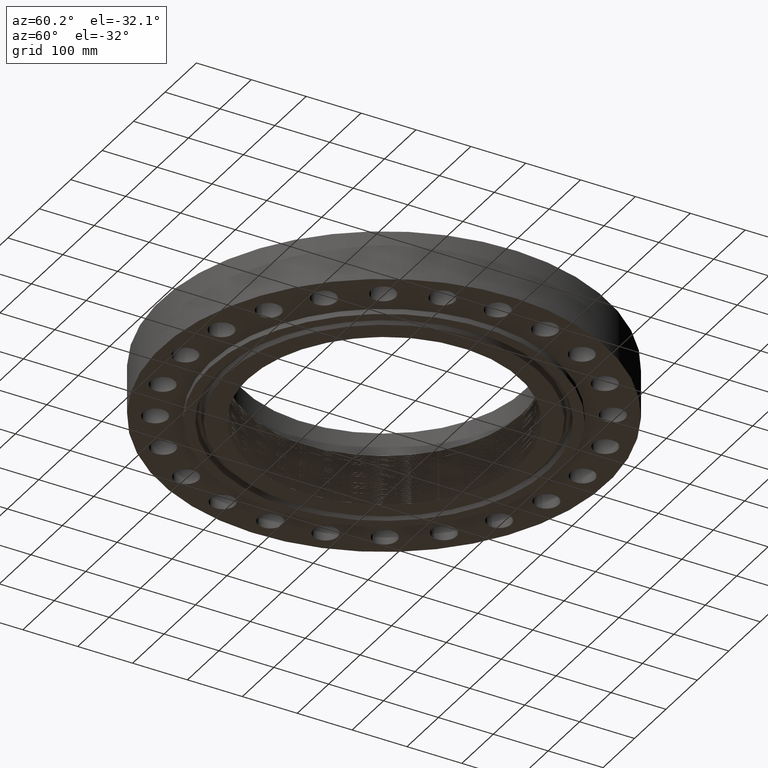
[diagram: clean part render]
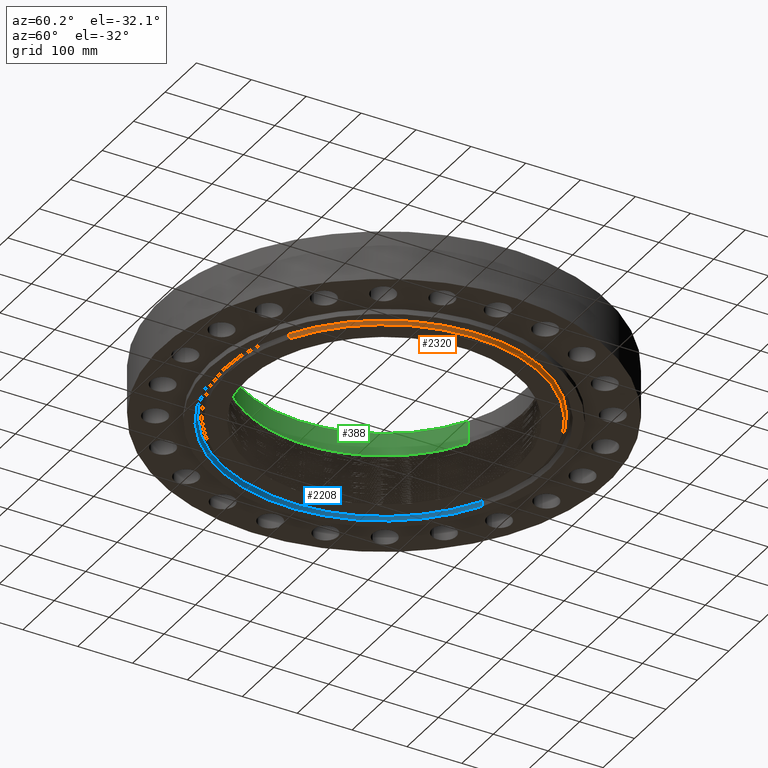
[diagram: same view with three faces highlighted in distinct colors, each labeled with its STEP entity id]
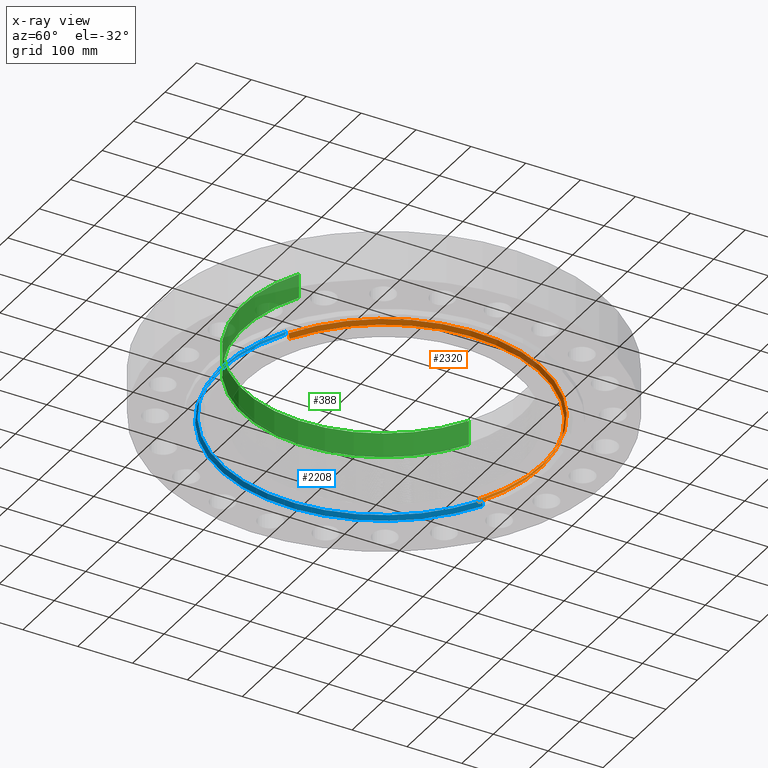
[diagram: x-ray of the same camera — body ghosted, the three highlighted faces saturated]
A machine part, auxiliary view with three faces highlighted in distinct colors.
The next image is the same camera in x-ray (body ghosted, the three faces saturated) — at least one of them is partly hidden behind the body in this view.
Their STEP definitions:

[orange] entity #2320 — the highlighted conical surface has half-angle 23 deg.
#199=AXIS2_PLACEMENT_3D('Circle Axis2P3D',#197,#198,$) ;
#2270=AXIS2_PLACEMENT_3D('Circle Axis2P3D',#2268,#2269,$) ;
#2302=AXIS2_PLACEMENT_3D('Cone Axis2P3D',#2299,#2300,#2301) ;
#197=CARTESIAN_POINT('Axis2P3D Location',(0.,2.79741234551E-016,-0.375000000001)) ;
#201=CARTESIAN_POINT('Vertex',(-5.38604628528,9.85909159378,-0.375000000001)) ;
#203=CARTESIAN_POINT('Vertex',(5.38604628528,-9.85909159378,-0.375000000001)) ;
#2265=CARTESIAN_POINT('Vertex',(5.45461101721,-9.98459849371,-0.0380793044696)) ;
#2268=CARTESIAN_POINT('Axis2P3D Location',(0.,0.,-0.0380793044696)) ;
#2272=CARTESIAN_POINT('Vertex',(-5.45461101721,9.98459849371,-0.0380793044696)) ;
#2299=CARTESIAN_POINT('Axis2P3D Location',(0.,0.,-0.435000000002)) ;
#2304=CARTESIAN_POINT('Line Origine',(-5.42032865124,9.92184504374,-0.206539652236)) ;
#2309=CARTESIAN_POINT('Line Origine',(5.42032865124,-9.92184504374,-0.206539652236)) ;
#198=DIRECTION('Axis2P3D Direction',(0.,0.,-0.0393700787402)) ;
#2269=DIRECTION('Axis2P3D Direction',(0.,0.,0.0393700787402)) ;
#2300=DIRECTION('Axis2P3D Direction',(0.,0.,0.0393700787402)) ;
#2301=DIRECTION('Axis2P3D XDirection',(-0.0188750212049,0.0345504945626,0.)) ;
#2305=DIRECTION('Vector Direction',(-0.00737505833565,0.0134999537303,0.0362403485611)) ;
#2310=DIRECTION('Vector Direction',(0.00737505833565,-0.0134999537303,0.0362403485611)) ;
#2306=VECTOR('Line Direction',#2305,0.0393700787402) ;
#2311=VECTOR('Line Direction',#2310,0.0393700787402) ;
#2315=ORIENTED_EDGE('',*,*,#2308,.F.) ;
#2316=ORIENTED_EDGE('',*,*,#2274,.F.) ;
#2317=ORIENTED_EDGE('',*,*,#2313,.T.) ;
#2318=ORIENTED_EDGE('',*,*,#205,.F.) ;
#2320=ADVANCED_FACE('PartBody',(#2319),#2303,.T.) ;
#200=CIRCLE('generated circle',#199,11.234375) ;
#2271=CIRCLE('generated circle',#2270,11.3773893504) ;
#2303=CONICAL_SURFACE('Cone',#2302,11.2089065111,0.401425727959) ;
#205=EDGE_CURVE('',#202,#204,#200,.T.) ;
#2274=EDGE_CURVE('',#2266,#2273,#2271,.T.) ;
#2308=EDGE_CURVE('',#2273,#202,#2307,.F.) ;
#2313=EDGE_CURVE('',#2266,#204,#2312,.F.) ;
#2314=EDGE_LOOP('',(#2315,#2316,#2317,#2318)) ;
#2319=FACE_OUTER_BOUND('',#2314,.T.) ;
#2307=LINE('Line',#2304,#2306) ;
#2312=LINE('Line',#2309,#2311) ;
#202=VERTEX_POINT('',#201) ;
#204=VERTEX_POINT('',#203) ;
#2266=VERTEX_POINT('',#2265) ;
#2273=VERTEX_POINT('',#2272) ;

[blue] entity #2208 — the highlighted conical surface has half-angle 23 deg.
#409=AXIS2_PLACEMENT_3D('Circle Axis2P3D',#407,#408,$) ;
#2154=AXIS2_PLACEMENT_3D('Circle Axis2P3D',#2152,#2153,$) ;
#2190=AXIS2_PLACEMENT_3D('Cone Axis2P3D',#2187,#2188,#2189) ;
#407=CARTESIAN_POINT('Axis2P3D Location',(5.59482469102E-016,2.23792987641E-015,-0.375000000001)) ;
#411=CARTESIAN_POINT('Vertex',(5.64074110266,-10.3253073298,-0.375000000001)) ;
#413=CARTESIAN_POINT('Vertex',(-5.64074110266,10.3253073298,-0.375000000001)) ;
#2152=CARTESIAN_POINT('Axis2P3D Location',(0.,0.,-0.0380793044696)) ;
#2156=CARTESIAN_POINT('Vertex',(-5.57217637074,10.1998004298,-0.0380793044696)) ;
#2158=CARTESIAN_POINT('Vertex',(5.57217637074,-10.1998004298,-0.0380793044696)) ;
#2187=CARTESIAN_POINT('Axis2P3D Location',(0.,0.,-0.0380793044696)) ;
#2192=CARTESIAN_POINT('Line Origine',(-5.6064587367,10.2625538798,-0.206539652236)) ;
#2197=CARTESIAN_POINT('Line Origine',(5.6064587367,-10.2625538798,-0.206539652236)) ;
#408=DIRECTION('Axis2P3D Direction',(0.,0.,-0.0393700787402)) ;
#2153=DIRECTION('Axis2P3D Direction',(0.,0.,0.0393700787402)) ;
#2188=DIRECTION('Axis2P3D Direction',(-0.,-0.,-0.0393700787402)) ;
#2189=DIRECTION('Axis2P3D XDirection',(-0.0188750212049,0.0345504945626,0.)) ;
#2193=DIRECTION('Vector Direction',(-0.00737505833565,0.0134999537303,-0.0362403485611)) ;
#2198=DIRECTION('Vector Direction',(0.00737505833565,-0.0134999537303,-0.0362403485611)) ;
#2194=VECTOR('Line Direction',#2193,0.0393700787402) ;
#2199=VECTOR('Line Direction',#2198,0.0393700787402) ;
#2203=ORIENTED_EDGE('',*,*,#415,.T.) ;
#2204=ORIENTED_EDGE('',*,*,#2196,.T.) ;
#2205=ORIENTED_EDGE('',*,*,#2160,.T.) ;
#2206=ORIENTED_EDGE('',*,*,#2201,.F.) ;
#2208=ADVANCED_FACE('PartBody',(#2207),#2191,.F.) ;
#410=CIRCLE('generated circle',#409,11.765625) ;
#2155=CIRCLE('generated circle',#2154,11.6226106497) ;
#2191=CONICAL_SURFACE('Cone',#2190,11.6226106497,0.401425727959) ;
#415=EDGE_CURVE('',#412,#414,#410,.T.) ;
#2160=EDGE_CURVE('',#2157,#2159,#2155,.T.) ;
#2196=EDGE_CURVE('',#414,#2157,#2195,.F.) ;
#2201=EDGE_CURVE('',#412,#2159,#2200,.F.) ;
#2202=EDGE_LOOP('',(#2203,#2204,#2205,#2206)) ;
#2207=FACE_OUTER_BOUND('',#2202,.T.) ;
#2195=LINE('Line',#2192,#2194) ;
#2200=LINE('Line',#2197,#2199) ;
#412=VERTEX_POINT('',#411) ;
#414=VERTEX_POINT('',#413) ;
#2157=VERTEX_POINT('',#2156) ;
#2159=VERTEX_POINT('',#2158) ;

[green] entity #388 — the highlighted cylindrical surface (partial cylindrical patch) has radius 256.413 mm, axis along (0, 0, 1).
#42=AXIS2_PLACEMENT_3D('Circle Axis2P3D',#40,#41,$) ;
#349=AXIS2_PLACEMENT_3D('Cylinder Axis2P3D',#346,#347,#348) ;
#379=AXIS2_PLACEMENT_3D('Circle Axis2P3D',#377,#378,$) ;
#40=CARTESIAN_POINT('Axis2P3D Location',(0.,0.,3.25000000001)) ;
#44=CARTESIAN_POINT('Vertex',(-4.83980081223,8.85919596232,3.25000000001)) ;
#46=CARTESIAN_POINT('Vertex',(4.83980081223,-8.85919596232,3.25000000001)) ;
#346=CARTESIAN_POINT('Axis2P3D Location',(0.,0.,3.25000000001)) ;
#355=CARTESIAN_POINT('Vertex',(-4.83980081223,8.85919596232,5.00000000002)) ;
#357=CARTESIAN_POINT('Vertex',(4.83980081223,-8.85919596232,5.00000000002)) ;
#360=CARTESIAN_POINT('Line Origine',(-4.83980081223,8.85919596232,4.12500000002)) ;
#365=CARTESIAN_POINT('Line Origine',(4.83980081223,-8.85919596232,4.12500000002)) ;
#377=CARTESIAN_POINT('Axis2P3D Location',(0.,0.,5.00000000002)) ;
#41=DIRECTION('Axis2P3D Direction',(0.,0.,0.0393700787402)) ;
#347=DIRECTION('Axis2P3D Direction',(0.,0.,0.0393700787402)) ;
#348=DIRECTION('Axis2P3D XDirection',(-0.0188750212049,0.0345504945626,0.)) ;
#361=DIRECTION('Vector Direction',(0.,0.,0.0393700787402)) ;
#366=DIRECTION('Vector Direction',(0.,0.,0.0393700787402)) ;
#378=DIRECTION('Axis2P3D Direction',(0.,0.,0.0393700787402)) ;
#362=VECTOR('Line Direction',#361,0.0393700787402) ;
#367=VECTOR('Line Direction',#366,0.0393700787402) ;
#383=ORIENTED_EDGE('',*,*,#381,.F.) ;
#384=ORIENTED_EDGE('',*,*,#369,.F.) ;
#385=ORIENTED_EDGE('',*,*,#48,.F.) ;
#386=ORIENTED_EDGE('',*,*,#364,.T.) ;
#388=ADVANCED_FACE('PartBody',(#387),#350,.F.) ;
#43=CIRCLE('generated circle',#42,10.095) ;
#380=CIRCLE('generated circle',#379,10.095) ;
#350=CYLINDRICAL_SURFACE('generated cylinder',#349,10.095) ;
#48=EDGE_CURVE('',#45,#47,#43,.T.) ;
#364=EDGE_CURVE('',#45,#356,#363,.T.) ;
#369=EDGE_CURVE('',#47,#358,#368,.T.) ;
#381=EDGE_CURVE('',#358,#356,#380,.F.) ;
#382=EDGE_LOOP('',(#383,#384,#385,#386)) ;
#387=FACE_OUTER_BOUND('',#382,.T.) ;
#363=LINE('Line',#360,#362) ;
#368=LINE('Line',#365,#367) ;
#45=VERTEX_POINT('',#44) ;
#47=VERTEX_POINT('',#46) ;
#356=VERTEX_POINT('',#355) ;
#358=VERTEX_POINT('',#357) ;